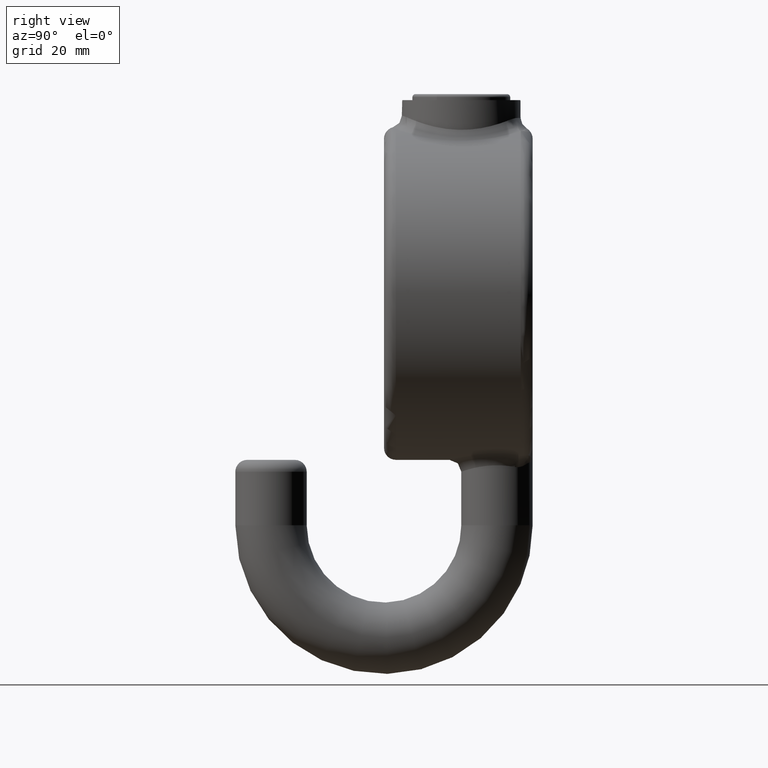
[diagram: clean part render]
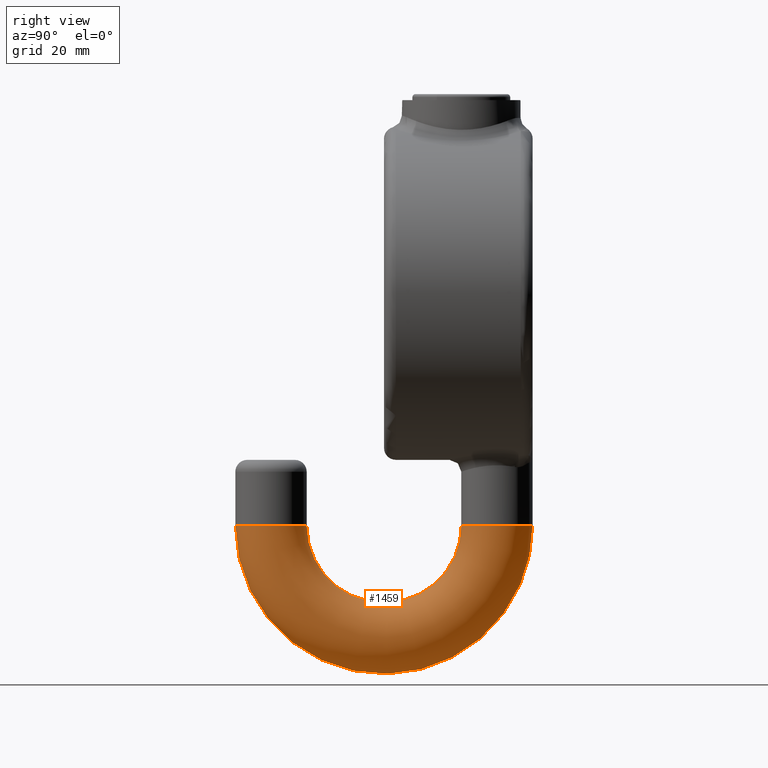
[diagram: same view with one face highlighted and labeled with its STEP entity id]
A machine part, right view. The second image highlights one B-rep face of the part: STEP entity #1459.
In plain terms, the highlighted toroidal blend (fillet) surface has major radius 19 mm and minor (blend) radius 6 mm.
Its self-contained STEP definition (entity closure, byte-faithful):
#44 = EDGE_LOOP ( 'NONE', ( #781 ) ) ;
#229 = DIRECTION ( 'NONE',  ( 0.000000000000000000, -1.929395884446842899E-16, 1.000000000000000000 ) ) ;
#781 = ORIENTED_EDGE ( 'NONE', *, *, #6212, .F. ) ;
#1000 = VERTEX_POINT ( 'NONE', #8376 ) ;
#1459 = ADVANCED_FACE ( 'NONE', ( #4415, #5590 ), #11853, .T. ) ;
#2932 = DIRECTION ( 'NONE',  ( 1.000000000000000000, 0.000000000000000000, -0.000000000000000000 ) ) ;
#3014 = EDGE_LOOP ( 'NONE', ( #6568 ) ) ;
#3187 = CIRCLE ( 'NONE', #5418, 6.000000000000001776 ) ;
#4278 = CARTESIAN_POINT ( 'NONE',  ( 0.000000000000000000, -18.99999999999999645, -39.00000000000000711 ) ) ;
#4415 = FACE_OUTER_BOUND ( 'NONE', #3014, .T. ) ;
#5048 = AXIS2_PLACEMENT_3D ( 'NONE', #4278, #7232, #8024 ) ;
#5418 = AXIS2_PLACEMENT_3D ( 'NONE', #10555, #229, #6910 ) ;
#5590 = FACE_OUTER_BOUND ( 'NONE', #44, .T. ) ;
#6212 = EDGE_CURVE ( 'NONE', #1000, #1000, #3187, .T. ) ;
#6568 = ORIENTED_EDGE ( 'NONE', *, *, #8954, .T. ) ;
#6910 = DIRECTION ( 'NONE',  ( 0.000000000000000000, -1.000000000000000000, 0.000000000000000000 ) ) ;
#7232 = DIRECTION ( 'NONE',  ( 0.000000000000000000, 3.154042683594196107E-16, -1.000000000000000000 ) ) ;
#7564 = VERTEX_POINT ( 'NONE', #10146 ) ;
#7594 = DIRECTION ( 'NONE',  ( 0.000000000000000000, 0.000000000000000000, -1.000000000000000000 ) ) ;
#7724 = CARTESIAN_POINT ( 'NONE',  ( 0.000000000000000000, 0.000000000000000000, -39.00000000000000000 ) ) ;
#8024 = DIRECTION ( 'NONE',  ( 0.000000000000000000, 1.000000000000000000, 0.000000000000000000 ) ) ;
#8376 = CARTESIAN_POINT ( 'NONE',  ( 0.000000000000000000, 12.99999999999999467, -38.99999999999999289 ) ) ;
#8954 = EDGE_CURVE ( 'NONE', #7564, #7564, #9839, .T. ) ;
#9577 = AXIS2_PLACEMENT_3D ( 'NONE', #7724, #2932, #7594 ) ;
#9839 = CIRCLE ( 'NONE', #5048, 6.000000000000001776 ) ;
#10146 = CARTESIAN_POINT ( 'NONE',  ( 0.000000000000000000, -12.99999999999999467, -39.00000000000000711 ) ) ;
#10555 = CARTESIAN_POINT ( 'NONE',  ( 0.000000000000000000, 18.99999999999999645, -38.99999999999999289 ) ) ;
#11853 = TOROIDAL_SURFACE ( 'NONE', #9577, 18.99999999999999645, 6.000000000000000888 ) ;